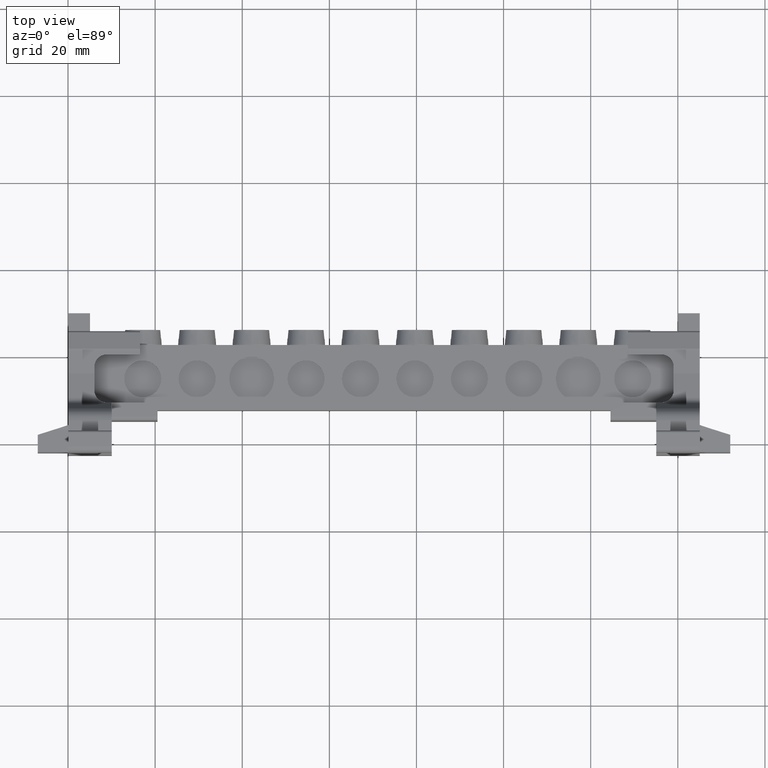
[diagram: clean part render]
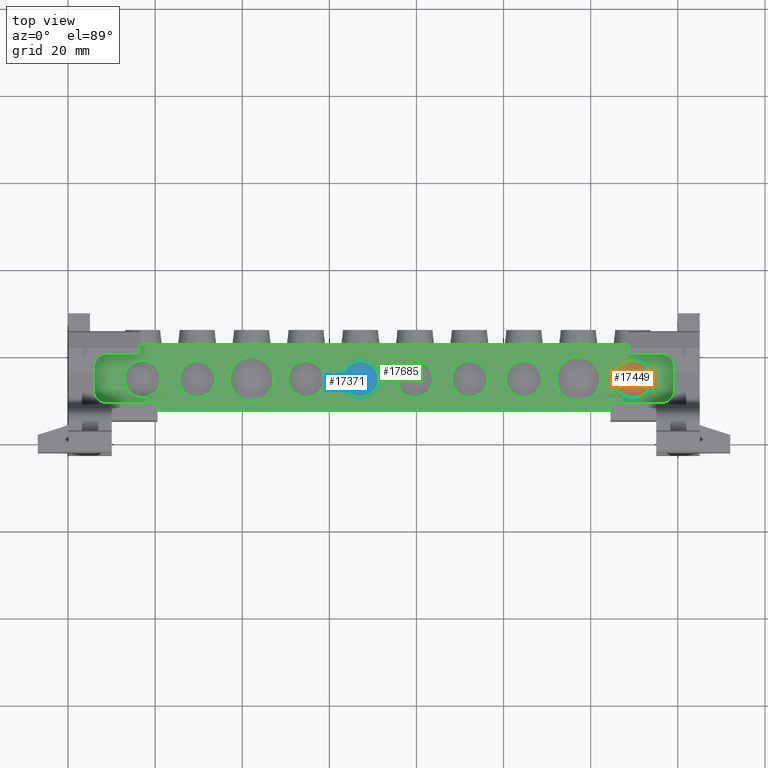
[diagram: same view with three faces highlighted in distinct colors, each labeled with its STEP entity id]
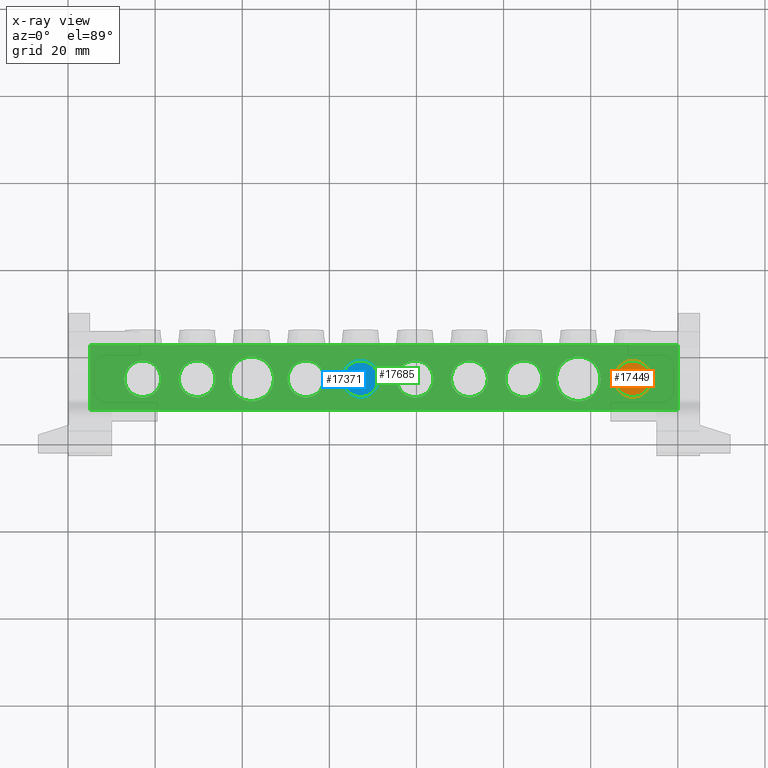
[diagram: x-ray of the same camera — body ghosted, the three highlighted faces saturated]
A machine part, top view with three faces highlighted in distinct colors.
The next image is the same camera in x-ray (body ghosted, the three faces saturated) — at least one of them is partly hidden behind the body in this view.
Their STEP definitions:

[orange] entity #17449 — the highlighted planar face has unit normal (0, 0, 1).
#859 = CARTESIAN_POINT ( 'NONE',  ( 29.64730230417559700, 54.61882648292838400, 42.57764998369307800 ) ) ;
#860 = DIRECTION ( 'NONE',  ( 0.0000000000000000000, 0.0000000000000000000, 1.000000000000000000 ) ) ;
#890 = DIRECTION ( 'NONE',  ( 1.000000000000000000, 0.0000000000000000000, 0.0000000000000000000 ) ) ;
#1896 = VERTEX_POINT ( 'NONE', #4707 ) ;
#1905 = VERTEX_POINT ( 'NONE', #4722 ) ;
#4707 = CARTESIAN_POINT ( 'NONE',  ( 25.39730230417559300, 54.61882648292838400, 42.57764998369307800 ) ) ;
#4722 = CARTESIAN_POINT ( 'NONE',  ( 33.89730230417558900, 54.61882648292838400, 42.57764998369307800 ) ) ;
#7533 = EDGE_LOOP ( 'NONE', ( #13266, #13272 ) ) ;
#11062 = AXIS2_PLACEMENT_3D ( 'NONE', #859, #860, #890 ) ;
#11078 = CIRCLE ( 'NONE', #11062, 4.249999999999996400 ) ;
#11534 = CARTESIAN_POINT ( 'NONE',  ( 29.64730230417559700, 54.61882648292838400, 42.57764998369307800 ) ) ;
#11536 = DIRECTION ( 'NONE',  ( 1.000000000000000000, 0.0000000000000000000, 0.0000000000000000000 ) ) ;
#11574 = DIRECTION ( 'NONE',  ( 0.0000000000000000000, 0.0000000000000000000, 1.000000000000000000 ) ) ;
#11883 = AXIS2_PLACEMENT_3D ( 'NONE', #19406, #19356, #19398 ) ;
#13266 = ORIENTED_EDGE ( 'NONE', *, *, #14162, .T. ) ;
#13272 = ORIENTED_EDGE ( 'NONE', *, *, #14382, .T. ) ;
#14162 = EDGE_CURVE ( 'NONE', #1905, #1896, #11078, .T. ) ;
#14382 = EDGE_CURVE ( 'NONE', #1896, #1905, #15386, .T. ) ;
#15386 = CIRCLE ( 'NONE', #15400, 4.249999999999996400 ) ;
#15400 = AXIS2_PLACEMENT_3D ( 'NONE', #11534, #11574, #11536 ) ;
#17449 = ADVANCED_FACE ( 'NONE', ( #19373 ), #19379, .T. ) ;
#19356 = DIRECTION ( 'NONE',  ( 0.0000000000000000000, 0.0000000000000000000, 1.000000000000000000 ) ) ;
#19373 = FACE_OUTER_BOUND ( 'NONE', #7533, .T. ) ;
#19379 = PLANE ( 'NONE',  #11883 ) ;
#19398 = DIRECTION ( 'NONE',  ( 1.000000000000000000, 0.0000000000000000000, -0.0000000000000000000 ) ) ;
#19406 = CARTESIAN_POINT ( 'NONE',  ( -56.45269769582440500, 61.91882648292838800, 42.57764998369307800 ) ) ;

[blue] entity #17371 — the highlighted planar face has unit normal (0, 0, 1).
#2 = AXIS2_PLACEMENT_3D ( 'NONE', #19156, #19236, #19208 ) ;
#826 = DIRECTION ( 'NONE',  ( -0.0000000000000000000, -0.0000000000000000000, 1.000000000000000000 ) ) ;
#827 = DIRECTION ( 'NONE',  ( -1.000000000000000000, 0.0000000000000000000, 0.0000000000000000000 ) ) ;
#829 = CARTESIAN_POINT ( 'NONE',  ( -32.85269769582441100, 54.61882648292838400, 42.57764998369308500 ) ) ;
#2060 = VERTEX_POINT ( 'NONE', #4865 ) ;
#2096 = VERTEX_POINT ( 'NONE', #4883 ) ;
#2466 = ORIENTED_EDGE ( 'NONE', *, *, #14152, .T. ) ;
#4865 = CARTESIAN_POINT ( 'NONE',  ( -28.60269769582440300, 54.61882648292838400, 42.57764998369308500 ) ) ;
#4883 = CARTESIAN_POINT ( 'NONE',  ( -37.10269769582441800, 54.61882648292838400, 42.57764998369308500 ) ) ;
#7569 = EDGE_LOOP ( 'NONE', ( #13276, #2466 ) ) ;
#10978 = CIRCLE ( 'NONE', #10979, 4.250000000000003600 ) ;
#10979 = AXIS2_PLACEMENT_3D ( 'NONE', #829, #826, #827 ) ;
#11456 = CARTESIAN_POINT ( 'NONE',  ( -32.85269769582441100, 54.61882648292838400, 42.57764998369308500 ) ) ;
#11566 = DIRECTION ( 'NONE',  ( -1.000000000000000000, 0.0000000000000000000, 0.0000000000000000000 ) ) ;
#11610 = DIRECTION ( 'NONE',  ( -0.0000000000000000000, -0.0000000000000000000, 1.000000000000000000 ) ) ;
#13276 = ORIENTED_EDGE ( 'NONE', *, *, #14377, .T. ) ;
#14152 = EDGE_CURVE ( 'NONE', #2060, #2096, #10978, .T. ) ;
#14377 = EDGE_CURVE ( 'NONE', #2096, #2060, #15354, .T. ) ;
#15354 = CIRCLE ( 'NONE', #15365, 4.250000000000003600 ) ;
#15365 = AXIS2_PLACEMENT_3D ( 'NONE', #11456, #11610, #11566 ) ;
#17371 = ADVANCED_FACE ( 'NONE', ( #19153 ), #19154, .T. ) ;
#19153 = FACE_OUTER_BOUND ( 'NONE', #7569, .T. ) ;
#19154 = PLANE ( 'NONE',  #2 ) ;
#19156 = CARTESIAN_POINT ( 'NONE',  ( -32.85269769582441100, 54.61882648292838400, 42.57764998369308500 ) ) ;
#19208 = DIRECTION ( 'NONE',  ( 1.000000000000000000, 0.0000000000000000000, -0.0000000000000000000 ) ) ;
#19236 = DIRECTION ( 'NONE',  ( 0.0000000000000000000, 0.0000000000000000000, 1.000000000000000000 ) ) ;

[green] entity #17685 — the highlighted planar face has unit normal (0, 0, -1).
#768 = CARTESIAN_POINT ( 'NONE',  ( -20.35269769582440700, 54.61882648292838400, 43.07764998369307800 ) ) ;
#784 = DIRECTION ( 'NONE',  ( -1.000000000000000000, 0.0000000000000000000, 0.0000000000000000000 ) ) ;
#811 = DIRECTION ( 'NONE',  ( -0.0000000000000000000, -0.0000000000000000000, 1.000000000000000000 ) ) ;
#865 = DIRECTION ( 'NONE',  ( -0.0000000000000000000, -1.000000000000000000, -0.0000000000000000000 ) ) ;
#886 = CARTESIAN_POINT ( 'NONE',  ( 40.04730230417575100, 62.41882648292838800, 43.07764998369307800 ) ) ;
#888 = LINE ( 'NONE', #886, #11035 ) ;
#909 = DIRECTION ( 'NONE',  ( 7.897574987183420400E-015, 1.000000000000000000, 0.0000000000000000000 ) ) ;
#924 = CARTESIAN_POINT ( 'NONE',  ( -94.95269769582392900, 70.57882648293299600, 43.07764998369307800 ) ) ;
#944 = LINE ( 'NONE', #924, #11087 ) ;
#955 = CARTESIAN_POINT ( 'NONE',  ( -56.95269769582441200, 62.41882648292838800, 43.07764998369307800 ) ) ;
#960 = DIRECTION ( 'NONE',  ( 0.0000000000000000000, 0.0000000000000000000, 1.000000000000000000 ) ) ;
#961 = CARTESIAN_POINT ( 'NONE',  ( -57.85269769582440300, 54.61882648292838400, 43.07764998369307800 ) ) ;
#968 = DIRECTION ( 'NONE',  ( 1.000000000000000000, -0.0000000000000000000, 0.0000000000000000000 ) ) ;
#983 = LINE ( 'NONE', #955, #11037 ) ;
#990 = DIRECTION ( 'NONE',  ( 1.000000000000000000, 0.0000000000000000000, 0.0000000000000000000 ) ) ;
#992 = DIRECTION ( 'NONE',  ( 1.000000000000000000, 0.0000000000000000000, 0.0000000000000000000 ) ) ;
#994 = DIRECTION ( 'NONE',  ( 0.0000000000000000000, 0.0000000000000000000, 1.000000000000000000 ) ) ;
#996 = DIRECTION ( 'NONE',  ( -0.0000000000000000000, -0.0000000000000000000, 1.000000000000000000 ) ) ;
#1006 = CARTESIAN_POINT ( 'NONE',  ( 29.64730230417559700, 54.61882648292838400, 43.07764998369307800 ) ) ;
#1016 = CARTESIAN_POINT ( 'NONE',  ( 17.14730230417558900, 54.61882648292838400, 43.07764998369307800 ) ) ;
#1017 = DIRECTION ( 'NONE',  ( 0.0000000000000000000, 0.0000000000000000000, 1.000000000000000000 ) ) ;
#1022 = DIRECTION ( 'NONE',  ( 1.000000000000000000, 0.0000000000000000000, 0.0000000000000000000 ) ) ;
#1024 = DIRECTION ( 'NONE',  ( -1.000000000000000000, 0.0000000000000000000, 0.0000000000000000000 ) ) ;
#1025 = DIRECTION ( 'NONE',  ( 0.0000000000000000000, 0.0000000000000000000, 1.000000000000000000 ) ) ;
#1026 = CARTESIAN_POINT ( 'NONE',  ( -45.35269769582441100, 54.61882648292838400, 43.07764998369307800 ) ) ;
#1027 = CARTESIAN_POINT ( 'NONE',  ( -70.35269769582441800, 54.61882648292838400, 43.07764998369307800 ) ) ;
#1030 = DIRECTION ( 'NONE',  ( 1.000000000000000000, 0.0000000000000000000, 0.0000000000000000000 ) ) ;
#1034 = CARTESIAN_POINT ( 'NONE',  ( -56.95269769582441200, 47.41882648292877900, 43.07764998369307800 ) ) ;
#1039 = CARTESIAN_POINT ( 'NONE',  ( -32.85269769582441100, 54.61882648292838400, 43.07764998369307800 ) ) ;
#1040 = DIRECTION ( 'NONE',  ( -0.0000000000000000000, -0.0000000000000000000, 1.000000000000000000 ) ) ;
#1041 = DIRECTION ( 'NONE',  ( -1.000000000000000000, 0.0000000000000000000, 0.0000000000000000000 ) ) ;
#1044 = DIRECTION ( 'NONE',  ( 0.0000000000000000000, 0.0000000000000000000, 1.000000000000000000 ) ) ;
#1047 = CARTESIAN_POINT ( 'NONE',  ( -82.85269769582440300, 54.61882648292838400, 43.07764998369307800 ) ) ;
#1054 = CARTESIAN_POINT ( 'NONE',  ( -57.85269769582440300, 54.61882648292838400, 43.07764998369307800 ) ) ;
#1056 = DIRECTION ( 'NONE',  ( 1.000000000000000000, 0.0000000000000000000, 0.0000000000000000000 ) ) ;
#1057 = DIRECTION ( 'NONE',  ( 0.0000000000000000000, 0.0000000000000000000, 1.000000000000000000 ) ) ;
#1060 = CARTESIAN_POINT ( 'NONE',  ( -82.85269769582440300, 54.61882648292838400, 43.07764998369307800 ) ) ;
#1065 = LINE ( 'NONE', #1034, #10691 ) ;
#1068 = DIRECTION ( 'NONE',  ( -1.000000000000000000, 0.0000000000000000000, -0.0000000000000000000 ) ) ;
#1108 = DIRECTION ( 'NONE',  ( 1.000000000000000000, 0.0000000000000000000, 0.0000000000000000000 ) ) ;
#1708 = DIRECTION ( 'NONE',  ( 0.0000000000000000000, 0.0000000000000000000, 1.000000000000000000 ) ) ;
#1914 = VERTEX_POINT ( 'NONE', #4727 ) ;
#1917 = VERTEX_POINT ( 'NONE', #4691 ) ;
#1923 = VERTEX_POINT ( 'NONE', #4724 ) ;
#1925 = VERTEX_POINT ( 'NONE', #4696 ) ;
#1949 = VERTEX_POINT ( 'NONE', #4788 ) ;
#1959 = VERTEX_POINT ( 'NONE', #4740 ) ;
#1966 = VERTEX_POINT ( 'NONE', #4758 ) ;
#1970 = VERTEX_POINT ( 'NONE', #4779 ) ;
#1979 = VERTEX_POINT ( 'NONE', #4760 ) ;
#2005 = VERTEX_POINT ( 'NONE', #4799 ) ;
#2011 = VERTEX_POINT ( 'NONE', #4834 ) ;
#2015 = VERTEX_POINT ( 'NONE', #4817 ) ;
#2028 = VERTEX_POINT ( 'NONE', #4826 ) ;
#2082 = VERTEX_POINT ( 'NONE', #4847 ) ;
#2083 = VERTEX_POINT ( 'NONE', #4849 ) ;
#2103 = VERTEX_POINT ( 'NONE', #4867 ) ;
#2114 = VERTEX_POINT ( 'NONE', #4853 ) ;
#2125 = VERTEX_POINT ( 'NONE', #4852 ) ;
#2128 = VERTEX_POINT ( 'NONE', #4858 ) ;
#2234 = VERTEX_POINT ( 'NONE', #4927 ) ;
#2575 = DIRECTION ( 'NONE',  ( 1.000000000000000000, 0.0000000000000000000, 0.0000000000000000000 ) ) ;
#4039 = CARTESIAN_POINT ( 'NONE',  ( 40.04730230417595700, 62.41882648292838800, 43.07764998369307800 ) ) ;
#4058 = CARTESIAN_POINT ( 'NONE',  ( -94.95269769582411400, 61.91882648293061900, 43.07764998369307800 ) ) ;
#4337 = EDGE_LOOP ( 'NONE', ( #13222, #9162 ) ) ;
#4339 = EDGE_LOOP ( 'NONE', ( #13197, #13188 ) ) ;
#4340 = EDGE_LOOP ( 'NONE', ( #9128, #9107 ) ) ;
#4346 = EDGE_LOOP ( 'NONE', ( #9190, #9111 ) ) ;
#4371 = EDGE_LOOP ( 'NONE', ( #13219, #13183 ) ) ;
#4373 = EDGE_LOOP ( 'NONE', ( #13186, #13191 ) ) ;
#4383 = EDGE_LOOP ( 'NONE', ( #9115, #9209 ) ) ;
#4398 = EDGE_LOOP ( 'NONE', ( #13185, #13229 ) ) ;
#4418 = EDGE_LOOP ( 'NONE', ( #9116, #9130, #9104, #9145, #9152, #9153, #9121, #9154, #9155, #9149 ) ) ;
#4423 = EDGE_LOOP ( 'NONE', ( #9156, #9157 ) ) ;
#4434 = EDGE_LOOP ( 'NONE', ( #9127, #9112 ) ) ;
#4691 = CARTESIAN_POINT ( 'NONE',  ( 25.39730230417559300, 54.61882648292838400, 43.07764998369307800 ) ) ;
#4696 = CARTESIAN_POINT ( 'NONE',  ( -78.60269769582440300, 54.61882648292838400, 43.07764998369307800 ) ) ;
#4724 = CARTESIAN_POINT ( 'NONE',  ( 8.897302304175598300, 54.61882648292838400, 43.07764998369307800 ) ) ;
#4727 = CARTESIAN_POINT ( 'NONE',  ( -49.60269769582441100, 54.61882648292838400, 43.07764998369307800 ) ) ;
#4740 = CARTESIAN_POINT ( 'NONE',  ( -66.10269769582441800, 54.61882648292838400, 43.07764998369307800 ) ) ;
#4758 = CARTESIAN_POINT ( 'NONE',  ( 22.29730230417558400, 54.61882648292838400, 43.07764998369307800 ) ) ;
#4760 = CARTESIAN_POINT ( 'NONE',  ( -12.10269769582441400, 54.61882648292838400, 43.07764998369307800 ) ) ;
#4779 = CARTESIAN_POINT ( 'NONE',  ( -87.10269769582440300, 54.61882648292838400, 43.07764998369307800 ) ) ;
#4788 = CARTESIAN_POINT ( 'NONE',  ( 11.99730230417559600, 54.61882648292838400, 43.07764998369307800 ) ) ;
#4799 = CARTESIAN_POINT ( 'NONE',  ( -41.10269769582440300, 54.61882648292838400, 43.07764998369307800 ) ) ;
#4817 = CARTESIAN_POINT ( 'NONE',  ( 33.89730230417558900, 54.61882648292838400, 43.07764998369307800 ) ) ;
#4826 = CARTESIAN_POINT ( 'NONE',  ( -16.10269769582440000, 54.61882648292838400, 43.07764998369307800 ) ) ;
#4834 = CARTESIAN_POINT ( 'NONE',  ( -37.10269769582441800, 54.61882648292838400, 43.07764998369307800 ) ) ;
#4847 = CARTESIAN_POINT ( 'NONE',  ( -3.602697695824400800, 54.61882648292838400, 43.07764998369307800 ) ) ;
#4849 = CARTESIAN_POINT ( 'NONE',  ( -52.70269769582440500, 54.61882648292838400, 43.07764998369307800 ) ) ;
#4852 = CARTESIAN_POINT ( 'NONE',  ( -24.60269769582441400, 54.61882648292838400, 43.07764998369307800 ) ) ;
#4853 = CARTESIAN_POINT ( 'NONE',  ( -74.60269769582441800, 54.61882648292838400, 43.07764998369307800 ) ) ;
#4858 = CARTESIAN_POINT ( 'NONE',  ( -63.00269769582440900, 54.61882648292838400, 43.07764998369307800 ) ) ;
#4867 = CARTESIAN_POINT ( 'NONE',  ( 0.3973023041755879300, 54.61882648292838400, 43.07764998369307800 ) ) ;
#4927 = CARTESIAN_POINT ( 'NONE',  ( -28.60269769582440300, 54.61882648292838400, 43.07764998369307800 ) ) ;
#4984 = CARTESIAN_POINT ( 'NONE',  ( -94.95269769582409900, 47.41882648293113800, 43.07764998369307800 ) ) ;
#5003 = CARTESIAN_POINT ( 'NONE',  ( 32.14730230417595900, 47.41882648292920500, 43.07764998369307800 ) ) ;
#5058 = CARTESIAN_POINT ( 'NONE',  ( -94.95269769582411400, 62.41882648292838800, 43.07764998369307800 ) ) ;
#5082 = CARTESIAN_POINT ( 'NONE',  ( 40.04730230417575100, 47.41882648293088900, 43.07764998369307800 ) ) ;
#5136 = CARTESIAN_POINT ( 'NONE',  ( 40.04730230417563800, 56.91882648293274400, 43.07764998369307800 ) ) ;
#5203 = CARTESIAN_POINT ( 'NONE',  ( -94.95269769582418500, 56.91882648293351800, 43.07764998369307800 ) ) ;
#5265 = CARTESIAN_POINT ( 'NONE',  ( 40.04730230417558800, 61.91882648292985900, 43.07764998369307800 ) ) ;
#5300 = CARTESIAN_POINT ( 'NONE',  ( -87.05269769582423600, 47.41882648292902800, 43.07764998369307800 ) ) ;
#6342 = VERTEX_POINT ( 'NONE', #4984 ) ;
#6353 = VERTEX_POINT ( 'NONE', #5003 ) ;
#6376 = VERTEX_POINT ( 'NONE', #5082 ) ;
#6385 = VERTEX_POINT ( 'NONE', #5058 ) ;
#6470 = VERTEX_POINT ( 'NONE', #5136 ) ;
#6559 = VERTEX_POINT ( 'NONE', #5203 ) ;
#6607 = VERTEX_POINT ( 'NONE', #5265 ) ;
#6640 = VERTEX_POINT ( 'NONE', #5300 ) ;
#6662 = VERTEX_POINT ( 'NONE', #4058 ) ;
#6672 = VERTEX_POINT ( 'NONE', #4039 ) ;
#9104 = ORIENTED_EDGE ( 'NONE', *, *, #14257, .F. ) ;
#9107 = ORIENTED_EDGE ( 'NONE', *, *, #14240, .F. ) ;
#9111 = ORIENTED_EDGE ( 'NONE', *, *, #14232, .F. ) ;
#9112 = ORIENTED_EDGE ( 'NONE', *, *, #14278, .F. ) ;
#9115 = ORIENTED_EDGE ( 'NONE', *, *, #14237, .F. ) ;
#9116 = ORIENTED_EDGE ( 'NONE', *, *, #14179, .F. ) ;
#9121 = ORIENTED_EDGE ( 'NONE', *, *, #14236, .F. ) ;
#9127 = ORIENTED_EDGE ( 'NONE', *, *, #14277, .F. ) ;
#9128 = ORIENTED_EDGE ( 'NONE', *, *, #14216, .F. ) ;
#9130 = ORIENTED_EDGE ( 'NONE', *, *, #14273, .F. ) ;
#9145 = ORIENTED_EDGE ( 'NONE', *, *, #14220, .F. ) ;
#9149 = ORIENTED_EDGE ( 'NONE', *, *, #14195, .F. ) ;
#9152 = ORIENTED_EDGE ( 'NONE', *, *, #14281, .F. ) ;
#9153 = ORIENTED_EDGE ( 'NONE', *, *, #14238, .F. ) ;
#9154 = ORIENTED_EDGE ( 'NONE', *, *, #14175, .F. ) ;
#9155 = ORIENTED_EDGE ( 'NONE', *, *, #14295, .F. ) ;
#9156 = ORIENTED_EDGE ( 'NONE', *, *, #14388, .F. ) ;
#9157 = ORIENTED_EDGE ( 'NONE', *, *, #14209, .F. ) ;
#9162 = ORIENTED_EDGE ( 'NONE', *, *, #14233, .F. ) ;
#9190 = ORIENTED_EDGE ( 'NONE', *, *, #14312, .F. ) ;
#9209 = ORIENTED_EDGE ( 'NONE', *, *, #14228, .F. ) ;
#10002 = AXIS2_PLACEMENT_3D ( 'NONE', #1027, #1025, #1030 ) ;
#10121 = CIRCLE ( 'NONE', #10210, 4.250000000000003600 ) ;
#10210 = AXIS2_PLACEMENT_3D ( 'NONE', #1026, #996, #1024 ) ;
#10505 = CIRCLE ( 'NONE', #10536, 4.249999999999996400 ) ;
#10536 = AXIS2_PLACEMENT_3D ( 'NONE', #1006, #994, #992 ) ;
#10691 = VECTOR ( 'NONE', #1068, 1000.000000000000000 ) ;
#10746 = CIRCLE ( 'NONE', #10811, 5.149999999999995000 ) ;
#10811 = AXIS2_PLACEMENT_3D ( 'NONE', #1016, #1017, #1022 ) ;
#11010 = CIRCLE ( 'NONE', #11025, 4.250000000000003600 ) ;
#11025 = AXIS2_PLACEMENT_3D ( 'NONE', #1060, #1057, #1056 ) ;
#11035 = VECTOR ( 'NONE', #865, 1000.000000000000000 ) ;
#11037 = VECTOR ( 'NONE', #968, 1000.000000000000000 ) ;
#11087 = VECTOR ( 'NONE', #909, 1000.000000000000000 ) ;
#11215 = CIRCLE ( 'NONE', #10002, 4.250000000000003600 ) ;
#11272 = CIRCLE ( 'NONE', #11295, 5.150000000000002100 ) ;
#11295 = AXIS2_PLACEMENT_3D ( 'NONE', #961, #960, #990 ) ;
#11410 = DIRECTION ( 'NONE',  ( -1.000000000000000000, 0.0000000000000000000, 0.0000000000000000000 ) ) ;
#11416 = DIRECTION ( 'NONE',  ( -0.0000000000000000000, -0.0000000000000000000, 1.000000000000000000 ) ) ;
#11453 = CARTESIAN_POINT ( 'NONE',  ( -45.35269769582441100, 54.61882648292838400, 43.07764998369307800 ) ) ;
#11478 = AXIS2_PLACEMENT_3D ( 'NONE', #18144, #18242, #18160 ) ;
#11571 = CARTESIAN_POINT ( 'NONE',  ( 17.14730230417558900, 54.61882648292838400, 43.07764998369307800 ) ) ;
#11584 = DIRECTION ( 'NONE',  ( 1.000000000000000000, 0.0000000000000000000, 0.0000000000000000000 ) ) ;
#11606 = DIRECTION ( 'NONE',  ( 0.0000000000000000000, 0.0000000000000000000, 1.000000000000000000 ) ) ;
#12310 = CARTESIAN_POINT ( 'NONE',  ( 29.64730230417559700, 54.61882648292838400, 43.07764998369307800 ) ) ;
#12312 = DIRECTION ( 'NONE',  ( -1.000000000000000000, 0.0000000000000000000, -0.0000000000000000000 ) ) ;
#12314 = CARTESIAN_POINT ( 'NONE',  ( 40.04730230417558800, 62.41882648292838800, 43.07764998369307800 ) ) ;
#12315 = LINE ( 'NONE', #12316, #18582 ) ;
#12316 = CARTESIAN_POINT ( 'NONE',  ( -56.95269769582441200, 47.41882648293088900, 43.07764998369307800 ) ) ;
#12319 = DIRECTION ( 'NONE',  ( -1.000000000000000000, 0.0000000000000000000, 0.0000000000000000000 ) ) ;
#12321 = CARTESIAN_POINT ( 'NONE',  ( -7.852697695824407000, 54.61882648292838400, 43.07764998369307800 ) ) ;
#12322 = CARTESIAN_POINT ( 'NONE',  ( -32.85269769582441100, 54.61882648292838400, 43.07764998369307800 ) ) ;
#12324 = LINE ( 'NONE', #12314, #18598 ) ;
#12327 = DIRECTION ( 'NONE',  ( 1.000000000000000000, 0.0000000000000000000, 0.0000000000000000000 ) ) ;
#12330 = DIRECTION ( 'NONE',  ( -1.000000000000000000, 0.0000000000000000000, 0.0000000000000000000 ) ) ;
#12331 = DIRECTION ( 'NONE',  ( -0.0000000000000000000, -0.0000000000000000000, 1.000000000000000000 ) ) ;
#12332 = DIRECTION ( 'NONE',  ( -0.0000000000000000000, -0.0000000000000000000, 1.000000000000000000 ) ) ;
#12333 = DIRECTION ( 'NONE',  ( 0.0000000000000000000, 0.0000000000000000000, 1.000000000000000000 ) ) ;
#12335 = DIRECTION ( 'NONE',  ( -0.0000000000000000000, -1.000000000000000000, -0.0000000000000000000 ) ) ;
#12337 = DIRECTION ( 'NONE',  ( 0.0000000000000000000, 0.0000000000000000000, 1.000000000000000000 ) ) ;
#12339 = CARTESIAN_POINT ( 'NONE',  ( -70.35269769582441800, 54.61882648292838400, 43.07764998369307800 ) ) ;
#12342 = DIRECTION ( 'NONE',  ( 1.000000000000000000, 0.0000000000000000000, 0.0000000000000000000 ) ) ;
#12362 = LINE ( 'NONE', #12364, #18618 ) ;
#12364 = CARTESIAN_POINT ( 'NONE',  ( -94.95269769582409900, 62.41882648292838800, 43.07764998369307800 ) ) ;
#12375 = DIRECTION ( 'NONE',  ( 0.0000000000000000000, 1.000000000000000000, 0.0000000000000000000 ) ) ;
#12394 = LINE ( 'NONE', #12402, #18596 ) ;
#12402 = CARTESIAN_POINT ( 'NONE',  ( -94.95269769582425600, 62.41882648292838800, 43.07764998369307800 ) ) ;
#12425 = DIRECTION ( 'NONE',  ( 0.0000000000000000000, 1.000000000000000000, 0.0000000000000000000 ) ) ;
#12428 = CARTESIAN_POINT ( 'NONE',  ( 4.647302304175593000, 54.61882648292838400, 43.07764998369307800 ) ) ;
#12444 = CARTESIAN_POINT ( 'NONE',  ( -56.95269769582441200, 47.41882648292870100, 43.07764998369307800 ) ) ;
#12447 = CARTESIAN_POINT ( 'NONE',  ( 4.647302304175593000, 54.61882648292838400, 43.07764998369307800 ) ) ;
#12448 = DIRECTION ( 'NONE',  ( -1.000000000000000000, 0.0000000000000000000, -0.0000000000000000000 ) ) ;
#12449 = LINE ( 'NONE', #12444, #18669 ) ;
#12458 = DIRECTION ( 'NONE',  ( 0.0000000000000000000, 0.0000000000000000000, 1.000000000000000000 ) ) ;
#12462 = DIRECTION ( 'NONE',  ( 0.0000000000000000000, 0.0000000000000000000, 1.000000000000000000 ) ) ;
#12471 = DIRECTION ( 'NONE',  ( 1.000000000000000000, 0.0000000000000000000, 0.0000000000000000000 ) ) ;
#12478 = DIRECTION ( 'NONE',  ( 1.000000000000000000, 0.0000000000000000000, 0.0000000000000000000 ) ) ;
#12487 = CARTESIAN_POINT ( 'NONE',  ( 40.04730230417600700, 70.57882648293222900, 43.07764998369307800 ) ) ;
#12491 = DIRECTION ( 'NONE',  ( -7.897574987183420400E-015, -1.000000000000000000, 0.0000000000000000000 ) ) ;
#12493 = DIRECTION ( 'NONE',  ( -0.0000000000000000000, -0.0000000000000000000, 1.000000000000000000 ) ) ;
#12503 = CARTESIAN_POINT ( 'NONE',  ( -7.852697695824407000, 54.61882648292838400, 43.07764998369307800 ) ) ;
#12515 = DIRECTION ( 'NONE',  ( -1.000000000000000000, 0.0000000000000000000, 0.0000000000000000000 ) ) ;
#12525 = LINE ( 'NONE', #12487, #18642 ) ;
#12537 = DIRECTION ( 'NONE',  ( -0.0000000000000000000, -0.0000000000000000000, 1.000000000000000000 ) ) ;
#12548 = CARTESIAN_POINT ( 'NONE',  ( -20.35269769582440700, 54.61882648292838400, 43.07764998369307800 ) ) ;
#12549 = DIRECTION ( 'NONE',  ( -1.000000000000000000, 0.0000000000000000000, 0.0000000000000000000 ) ) ;
#13183 = ORIENTED_EDGE ( 'NONE', *, *, #14204, .F. ) ;
#13185 = ORIENTED_EDGE ( 'NONE', *, *, #14246, .F. ) ;
#13186 = ORIENTED_EDGE ( 'NONE', *, *, #14201, .F. ) ;
#13188 = ORIENTED_EDGE ( 'NONE', *, *, #14239, .F. ) ;
#13191 = ORIENTED_EDGE ( 'NONE', *, *, #14231, .F. ) ;
#13197 = ORIENTED_EDGE ( 'NONE', *, *, #14214, .F. ) ;
#13219 = ORIENTED_EDGE ( 'NONE', *, *, #14354, .F. ) ;
#13222 = ORIENTED_EDGE ( 'NONE', *, *, #14218, .F. ) ;
#13229 = ORIENTED_EDGE ( 'NONE', *, *, #14297, .F. ) ;
#14175 = EDGE_CURVE ( 'NONE', #6607, #6470, #888, .T. ) ;
#14179 = EDGE_CURVE ( 'NONE', #6662, #6385, #944, .T. ) ;
#14195 = EDGE_CURVE ( 'NONE', #6385, #6672, #983, .T. ) ;
#14201 = EDGE_CURVE ( 'NONE', #2083, #2128, #11272, .T. ) ;
#14204 = EDGE_CURVE ( 'NONE', #2005, #1914, #10121, .T. ) ;
#14209 = EDGE_CURVE ( 'NONE', #1949, #1966, #10746, .T. ) ;
#14214 = EDGE_CURVE ( 'NONE', #1959, #2114, #11215, .T. ) ;
#14216 = EDGE_CURVE ( 'NONE', #2015, #1917, #10505, .T. ) ;
#14218 = EDGE_CURVE ( 'NONE', #1925, #1970, #11010, .T. ) ;
#14220 = EDGE_CURVE ( 'NONE', #6640, #6342, #1065, .T. ) ;
#14228 = EDGE_CURVE ( 'NONE', #2234, #2011, #18707, .T. ) ;
#14231 = EDGE_CURVE ( 'NONE', #2128, #2083, #18630, .T. ) ;
#14232 = EDGE_CURVE ( 'NONE', #2028, #2125, #18632, .T. ) ;
#14233 = EDGE_CURVE ( 'NONE', #1970, #1925, #18599, .T. ) ;
#14236 = EDGE_CURVE ( 'NONE', #6470, #6376, #12324, .T. ) ;
#14237 = EDGE_CURVE ( 'NONE', #2011, #2234, #18631, .T. ) ;
#14238 = EDGE_CURVE ( 'NONE', #6376, #6353, #12315, .T. ) ;
#14239 = EDGE_CURVE ( 'NONE', #2114, #1959, #18625, .T. ) ;
#14240 = EDGE_CURVE ( 'NONE', #1917, #2015, #18620, .T. ) ;
#14246 = EDGE_CURVE ( 'NONE', #1979, #2082, #18629, .T. ) ;
#14257 = EDGE_CURVE ( 'NONE', #6342, #6559, #12362, .T. ) ;
#14273 = EDGE_CURVE ( 'NONE', #6559, #6662, #12394, .T. ) ;
#14277 = EDGE_CURVE ( 'NONE', #1923, #2103, #18619, .T. ) ;
#14278 = EDGE_CURVE ( 'NONE', #2103, #1923, #18701, .T. ) ;
#14281 = EDGE_CURVE ( 'NONE', #6353, #6640, #12449, .T. ) ;
#14295 = EDGE_CURVE ( 'NONE', #6672, #6607, #12525, .T. ) ;
#14297 = EDGE_CURVE ( 'NONE', #2082, #1979, #18683, .T. ) ;
#14312 = EDGE_CURVE ( 'NONE', #2125, #2028, #18691, .T. ) ;
#14354 = EDGE_CURVE ( 'NONE', #1914, #2005, #19888, .T. ) ;
#14388 = EDGE_CURVE ( 'NONE', #1966, #1949, #15401, .T. ) ;
#15391 = AXIS2_PLACEMENT_3D ( 'NONE', #11571, #11606, #11584 ) ;
#15401 = CIRCLE ( 'NONE', #15391, 5.149999999999995000 ) ;
#17685 = ADVANCED_FACE ( 'NONE', ( #18207, #18211, #18173, #18177, #18187, #18217, #18165, #18239, #18220, #18156, #18243 ), #18190, .F. ) ;
#18144 = CARTESIAN_POINT ( 'NONE',  ( -56.95269769582441200, 62.41882648292838800, 43.07764998369307800 ) ) ;
#18156 = FACE_BOUND ( 'NONE', #4346, .T. ) ;
#18160 = DIRECTION ( 'NONE',  ( -1.000000000000000000, 0.0000000000000000000, -0.0000000000000000000 ) ) ;
#18165 = FACE_BOUND ( 'NONE', #4434, .T. ) ;
#18173 = FACE_BOUND ( 'NONE', #4337, .T. ) ;
#18177 = FACE_BOUND ( 'NONE', #4339, .T. ) ;
#18187 = FACE_BOUND ( 'NONE', #4373, .T. ) ;
#18190 = PLANE ( 'NONE',  #11478 ) ;
#18207 = FACE_BOUND ( 'NONE', #4371, .T. ) ;
#18211 = FACE_BOUND ( 'NONE', #4398, .T. ) ;
#18217 = FACE_OUTER_BOUND ( 'NONE', #4418, .T. ) ;
#18220 = FACE_BOUND ( 'NONE', #4340, .T. ) ;
#18239 = FACE_BOUND ( 'NONE', #4423, .T. ) ;
#18242 = DIRECTION ( 'NONE',  ( 0.0000000000000000000, 0.0000000000000000000, -1.000000000000000000 ) ) ;
#18243 = FACE_BOUND ( 'NONE', #4383, .T. ) ;
#18574 = AXIS2_PLACEMENT_3D ( 'NONE', #1054, #1044, #1108 ) ;
#18581 = AXIS2_PLACEMENT_3D ( 'NONE', #1047, #1708, #2575 ) ;
#18582 = VECTOR ( 'NONE', #12312, 1000.000000000000000 ) ;
#18583 = AXIS2_PLACEMENT_3D ( 'NONE', #12322, #12331, #12330 ) ;
#18588 = AXIS2_PLACEMENT_3D ( 'NONE', #12310, #12333, #12342 ) ;
#18589 = AXIS2_PLACEMENT_3D ( 'NONE', #12321, #12332, #12319 ) ;
#18592 = AXIS2_PLACEMENT_3D ( 'NONE', #12428, #12458, #12471 ) ;
#18596 = VECTOR ( 'NONE', #12425, 1000.000000000000000 ) ;
#18598 = VECTOR ( 'NONE', #12335, 1000.000000000000000 ) ;
#18599 = CIRCLE ( 'NONE', #18581, 4.250000000000003600 ) ;
#18613 = AXIS2_PLACEMENT_3D ( 'NONE', #768, #811, #784 ) ;
#18618 = VECTOR ( 'NONE', #12375, 1000.000000000000000 ) ;
#18619 = CIRCLE ( 'NONE', #18592, 4.250000000000005300 ) ;
#18620 = CIRCLE ( 'NONE', #18588, 4.249999999999996400 ) ;
#18622 = AXIS2_PLACEMENT_3D ( 'NONE', #12339, #12337, #12327 ) ;
#18625 = CIRCLE ( 'NONE', #18622, 4.250000000000003600 ) ;
#18629 = CIRCLE ( 'NONE', #18589, 4.250000000000007100 ) ;
#18630 = CIRCLE ( 'NONE', #18574, 5.150000000000002100 ) ;
#18631 = CIRCLE ( 'NONE', #18583, 4.250000000000003600 ) ;
#18632 = CIRCLE ( 'NONE', #18613, 4.250000000000007100 ) ;
#18642 = VECTOR ( 'NONE', #12491, 1000.000000000000000 ) ;
#18662 = AXIS2_PLACEMENT_3D ( 'NONE', #12548, #12537, #12549 ) ;
#18669 = VECTOR ( 'NONE', #12448, 1000.000000000000000 ) ;
#18683 = CIRCLE ( 'NONE', #18688, 4.250000000000007100 ) ;
#18684 = AXIS2_PLACEMENT_3D ( 'NONE', #12447, #12462, #12478 ) ;
#18688 = AXIS2_PLACEMENT_3D ( 'NONE', #12503, #12493, #12515 ) ;
#18691 = CIRCLE ( 'NONE', #18662, 4.250000000000007100 ) ;
#18701 = CIRCLE ( 'NONE', #18684, 4.250000000000005300 ) ;
#18707 = CIRCLE ( 'NONE', #18708, 4.250000000000003600 ) ;
#18708 = AXIS2_PLACEMENT_3D ( 'NONE', #1039, #1040, #1041 ) ;
#19888 = CIRCLE ( 'NONE', #19891, 4.250000000000003600 ) ;
#19891 = AXIS2_PLACEMENT_3D ( 'NONE', #11453, #11416, #11410 ) ;